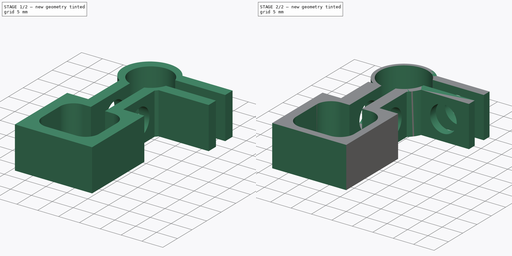
[diagram: build sequence overview — one tinted view per stage of 2, left to right]
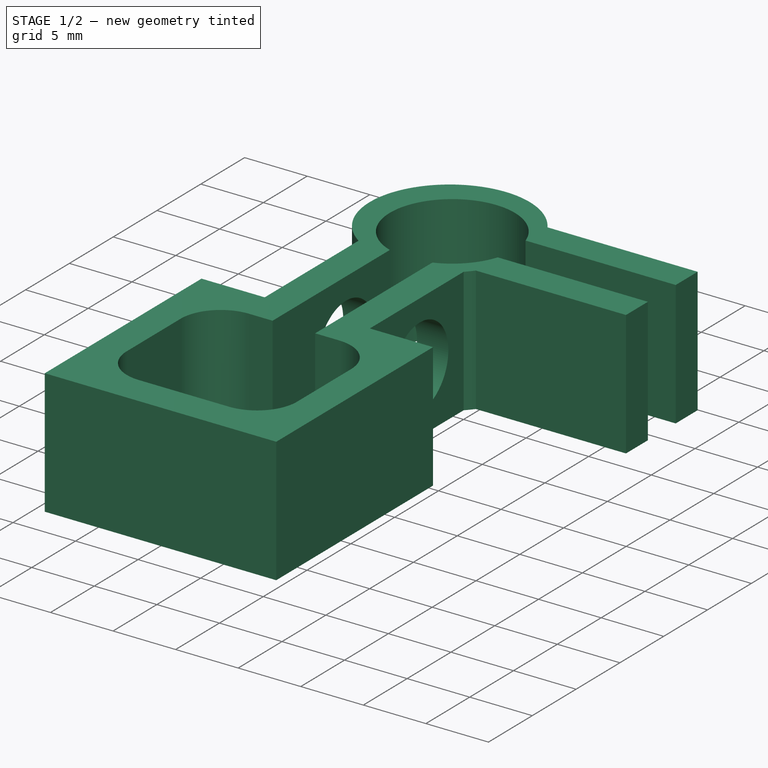
[diagram: stage 1 of 2 — iso view after this stage's code; geometry added in this stage tinted green]
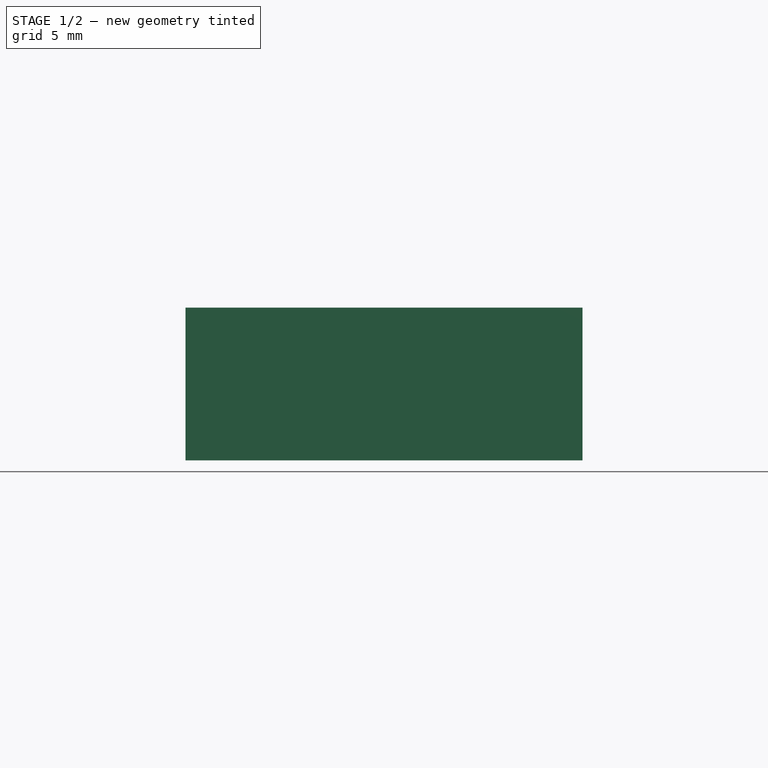
[diagram: stage 1 of 2 — front view after this stage's code; geometry added in this stage tinted green]
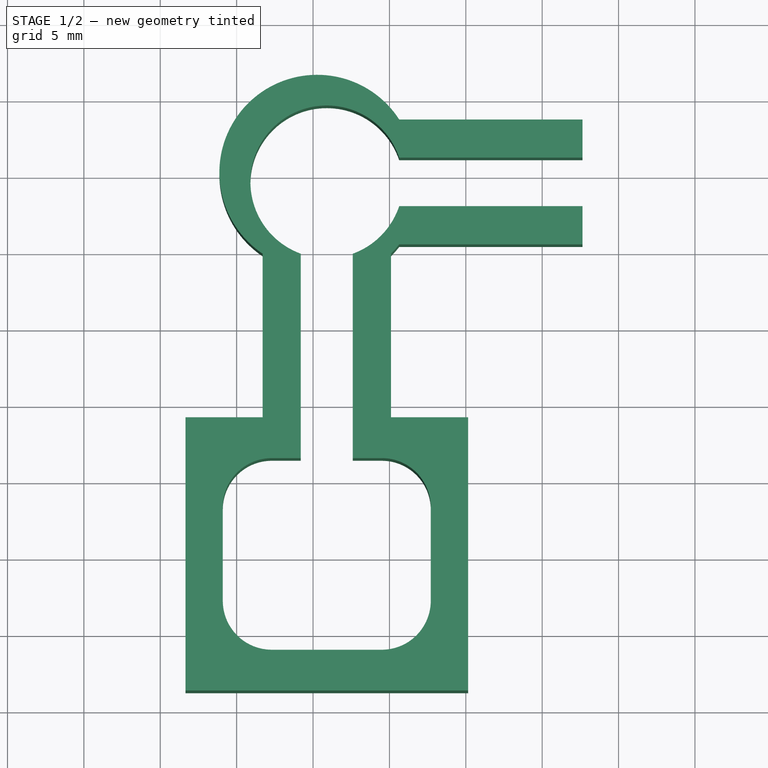
[diagram: stage 1 of 2 — top view after this stage's code; geometry added in this stage tinted green]
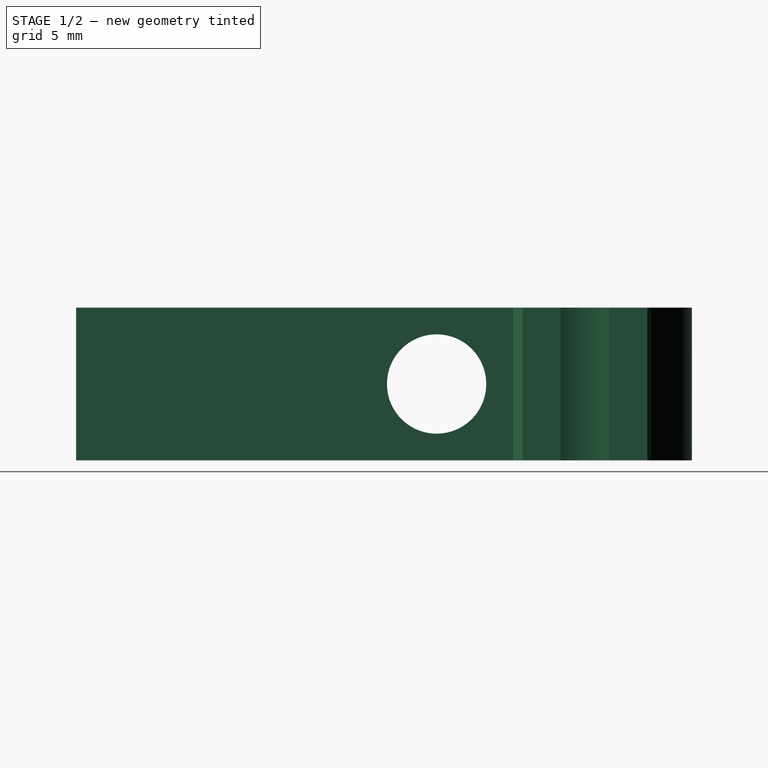
[diagram: stage 1 of 2 — right view after this stage's code; geometry added in this stage tinted green]
FCSTD DOCUMENT  (FreeCAD 0.21R33771 (Git))
Label: sryinge back holder
License: All rights reserved
LicenseURL: https://en.wikipedia.org/wiki/All_rights_reserved
objects: Sketcher::SketchObject×3, PartDesign::Pocket×2, PartDesign::Pad×1, PartDesign::Body×1
note: 10 computed .brp shape members not serialized (recipe doc carries the construction recipe); baked Part::Feature solids carry a one-line shape summary decoded from their .brp

FEATURE [Sketcher::SketchObject] Sketch
  FullyConstrained = false
  MapMode = 5
  Support = -> [XY_Plane]
  sketch-geometry (51):
    g0: LineSegment StartX=2.29927 StartY=-1.0515 StartZ=0 EndX=9.49927 EndY=-1.0515 EndZ=0
    g1: LineSegment StartX=12.7066 StartY=2.15582 StartZ=0 EndX=12.7066 EndY=8.28582 EndZ=0
    g2: LineSegment StartX=-0.90805 StartY=8.28582 StartZ=0 EndX=-0.90805 EndY=2.15582 EndZ=0
    g3: LineSegment StartX=0.14927 StartY=-0.224176 StartZ=0 EndX=-3.35073 EndY=-0.224176 EndZ=0
    g4: LineSegment StartX=0.14927 StartY=-3.72418 StartZ=0 EndX=0.14927 EndY=-0.224176 EndZ=0
    g5: LineSegment StartX=-3.35073 StartY=-3.72418 StartZ=0 EndX=15.1493 EndY=-3.72418 EndZ=0
    g6: LineSegment StartX=15.1493 StartY=-3.72418 StartZ=0 EndX=15.1493 EndY=14.1658 EndZ=0
    g7: LineSegment StartX=15.1493 StartY=14.1658 StartZ=0 EndX=10.0993 EndY=14.1658 EndZ=0
    g8: LineSegment StartX=-3.35073 StartY=14.1658 StartZ=0 EndX=-3.35073 EndY=-3.72418 EndZ=0
    g9: LineSegment StartX=11.6493 StartY=10.6658 StartZ=0 EndX=15.1493 EndY=10.6658 EndZ=0
    g10: LineSegment StartX=11.6493 StartY=14.1658 StartZ=0 EndX=11.6493 EndY=10.6658 EndZ=0
    g11: ArcOfCircle CenterX=2.29927 CenterY=8.28582 CenterZ=0 NormalX=0 NormalY=0 NormalZ=1 AngleXU=0 Radius=3.20732 StartAngle=1.5708 EndAngle=3.14159
    g12: ArcOfCircle CenterX=9.49927 CenterY=8.28582 CenterZ=0 NormalX=0 NormalY=0 NormalZ=1 AngleXU=0 Radius=3.20732 StartAngle=0 EndAngle=1.5708
    g13: ArcOfCircle CenterX=2.29927 CenterY=2.15582 CenterZ=0 NormalX=0 NormalY=0 NormalZ=1 AngleXU=0 Radius=3.20732 StartAngle=3.14159 EndAngle=4.71239
    g14: ArcOfCircle CenterX=9.49927 CenterY=2.15582 CenterZ=0 NormalX=0 NormalY=0 NormalZ=1 AngleXU=0 Radius=3.20732 StartAngle=4.71239 EndAngle=6.28319
    g15: LineSegment StartX=0.14927 StartY=14.1658 StartZ=0 EndX=0.14927 EndY=10.6658 EndZ=0
    g16: LineSegment StartX=0.14927 StartY=10.6658 StartZ=0 EndX=-3.35073 EndY=10.6658 EndZ=0
    g17: LineSegment StartX=11.6493 StartY=-3.72418 StartZ=0 EndX=11.6493 EndY=-0.224176 EndZ=0
    g18: LineSegment StartX=11.6493 StartY=-0.224176 StartZ=0 EndX=15.1493 EndY=-0.224176 EndZ=0
    g19: LineSegment StartX=1.69927 StartY=14.1658 StartZ=0 EndX=1.69927 EndY=24.8758 EndZ=0
    g20: LineSegment StartX=4.19927 StartY=24.8758 StartZ=0 EndX=4.19927 EndY=14.1658 EndZ=0
    g21: LineSegment StartX=10.0993 StartY=14.1658 StartZ=0 EndX=10.0993 EndY=24.8758 EndZ=0
    g22: LineSegment StartX=7.59927 StartY=24.8758 StartZ=0 EndX=7.59927 EndY=14.1658 EndZ=0
    g23: LineSegment StartX=1.69927 StartY=14.1658 StartZ=0 EndX=-3.35073 EndY=14.1658 EndZ=0
    g24: LineSegment StartX=4.19927 StartY=14.1658 StartZ=0 EndX=4.19927 EndY=11.4931 EndZ=0
    g25: LineSegment StartX=7.59927 StartY=14.1658 StartZ=0 EndX=7.59927 EndY=11.4931 EndZ=0
    g26: LineSegment StartX=4.19927 StartY=11.4931 StartZ=0 EndX=2.29927 EndY=11.4931 EndZ=0
    g27: LineSegment StartX=9.49927 StartY=11.4931 StartZ=0 EndX=7.59927 EndY=11.4931 EndZ=0
    g28: ArcOfCircle CenterX=5.8231 CenterY=29.1874 CenterZ=0 NormalX=0 NormalY=0 NormalZ=1 AngleXU=0 Radius=6.07253 StartAngle=5.49366 EndAngle=5.62863
    g29: ArcOfCircle CenterX=5.89927 CenterY=29.578 CenterZ=0 NormalX=0 NormalY=0 NormalZ=1 AngleXU=0 Radius=5 StartAngle=5.05931 EndAngle=5.96009
    g30: LineSegment StartX=7.59927 StartY=24.8758 StartZ=0 EndX=11.8317 EndY=24.8758 EndZ=0
    g31: LineSegment StartX=11.8317 StartY=24.8758 StartZ=0 EndX=11.8317 EndY=27.9905 EndZ=0
    g32: LineSegment StartX=11.8317 StartY=29.578 StartZ=0 EndX=7.59927 EndY=29.578 EndZ=0
    g33: LineSegment StartX=7.59927 StartY=29.578 StartZ=0 EndX=7.59927 EndY=24.8758 EndZ=0
    g34: LineSegment StartX=11.8317 StartY=29.578 StartZ=0 EndX=13.8605 EndY=29.578 EndZ=0
    g35: LineSegment StartX=13.8605 StartY=29.578 StartZ=0 EndX=13.8605 EndY=31.1655 EndZ=0
    g36: LineSegment StartX=13.8605 StartY=31.1655 StartZ=0 EndX=10.6406 EndY=31.1655 EndZ=0
    g37: LineSegment StartX=13.8605 StartY=27.9905 StartZ=0 EndX=11.8317 EndY=27.9905 EndZ=0
    g38: LineSegment StartX=13.8605 StartY=29.578 StartZ=0 EndX=13.8605 EndY=27.9905 EndZ=0
    g39: LineSegment StartX=11.8317 StartY=31.1655 StartZ=0 EndX=8.94186 EndY=31.1655 EndZ=0
    g40: LineSegment StartX=8.94186 StartY=31.1655 StartZ=0 EndX=8.94186 EndY=27.9905 EndZ=0
    g41: LineSegment StartX=8.94186 StartY=27.9905 StartZ=0 EndX=11.5819 EndY=27.9905 EndZ=0
    g42: LineSegment StartX=11.8317 StartY=27.9905 StartZ=0 EndX=11.8317 EndY=31.1655 EndZ=0
    g43: ArcOfCircle CenterX=5.26699 CenterY=30.1891 CenterZ=0 NormalX=0 NormalY=0 NormalZ=1 AngleXU=0 Radius=6.4 StartAngle=0.574211 EndAngle=4.12107
    g44: ArcOfCircle CenterX=5.89927 CenterY=29.578 CenterZ=0 NormalX=0 NormalY=0 NormalZ=1 AngleXU=0 Radius=5 StartAngle=0.323092 EndAngle=4.36547
    g45: LineSegment StartX=10.6406 StartY=31.1655 StartZ=0 EndX=22.6406 EndY=31.1655 EndZ=0
    g46: LineSegment StartX=22.6406 StartY=31.1655 StartZ=0 EndX=22.6406 EndY=33.6655 EndZ=0
    g47: LineSegment StartX=22.6406 StartY=33.6655 StartZ=0 EndX=10.6406 EndY=33.6655 EndZ=0
    g48: LineSegment StartX=10.6406 StartY=27.9905 StartZ=0 EndX=22.6406 EndY=27.9905 EndZ=0
    g49: LineSegment StartX=22.6406 StartY=27.9905 StartZ=0 EndX=22.6406 EndY=25.4905 EndZ=0
    g50: LineSegment StartX=22.6406 StartY=25.4905 StartZ=0 EndX=10.6406 EndY=25.4905 EndZ=0
  constraints (159):
    c: Equal(g8,g6)
    c: Coincident(g8,g5)
    c: Coincident(g6,g5)
    c: Distance(g8) = 17.89
    c: PointOnObject(g17,g5)
    c: PointOnObject(g4,g5)
    c: PointOnObject(g18,g6)
    c: PointOnObject(g17,g14)
    c: Coincident(g18,g17)
    c: Perpendicular(g5,g17)
    c: Perpendicular(g6,g-1)
    c: Perpendicular(g5,g6)
    c: Distance(g18) = 3.5
    c: Distance(g17) = 3.5
    c: Perpendicular(g18,g6)
    c: Coincident(g0,g14)
    c: Horizontal(g0)
    c: Coincident(g0,g13)
    c: PointOnObject(g3,g13)
    c: Distance(g4) = 3.5
    c: Distance(g3) = 3.5
    c: Coincident(g4,g3)
    c: PointOnObject(g3,g8)
    c: Perpendicular(g8,g3)
    c: Perpendicular(g5,g4)
    c: Distance(g0) = 7.2
    c: Distance(g5) = 18.5
    c: Coincident(g14,g1)
    c: Vertical(g1)
    c: Coincident(g13,g2)
    c: Vertical(g2)
    c: Coincident(g2,g11)
    c: Coincident(g1,g12)
    c: PointOnObject(g15,g11)
    c: Perpendicular(g8,g16)
    c: Perpendicular(g23,g15)
    c: PointOnObject(g9,g6)
    c: Vertical(g12,g14)
    c: Vertical(g11,g13)
    c: Coincident(g7,g6)
    c: Horizontal(g7)
    c: PointOnObject(g9,g12)
    c: Coincident(g10,g9)
    c: PointOnObject(g10,g7)
    c: Perpendicular(g6,g9)
    c: Perpendicular(g7,g10)
    c: Distance(g9) = 3.5
    c: Distance(g10) = 3.5
    c: Horizontal(g14,g13)
    c: Horizontal(g11,g12)
    c: Coincident(g26,g11)
    c: Coincident(g27,g12)
    c: Horizontal(g26)
    c: Horizontal(g27)
    c: Distance(g16) = 3.5
    c: Distance(g15) = 3.5
    c: Coincident(g16,g15)
    c: Vertical(g3,g15)
    c: Vertical(g0,g14)
    c: Horizontal(g1,g14)
    c: Vertical(g0,g13)
    c: Horizontal(g13,g2)
    c: Horizontal(g1,g12)
    c: Vertical(g12,g12)
    c: Horizontal(g11,g2)
    c: Vertical(g11,g11)
    c: Coincident(g23,g8)
    c: PointOnObject(g15,g23)
    c: Perpendicular(g23,g8)
    c: Coincident(g25,g27)
    c: Coincident(g24,g26)
    c: Equal(g7,g23)
    c: Coincident(g19,g23)
    c: Coincident(g21,g7)
    c: Vertical(g19)
    c: Vertical(g21)
    c: Equal(g26,g27)
    c: Coincident(g19,g43)
    c: Coincident(g28,g21)
    c: Radius(g43) = 6.4
    c: Radius(g44) = 5
    c: Radius(g29) = 5
    c: Coincident(g22,g29)
    c: Horizontal(g44,g22)
    c: Coincident(g20,g44)
    c: Coincident(g20,g24)
    c: Coincident(g22,g25)
    c: Vertical(g24)
    c: Vertical(g25)
    c: Vertical(g22)
    c: Vertical(g20)
    c: Distance(g2) = 6.13
    c: Coincident(g30,g22)
    c: Coincident(g33,g22)
    c: Horizontal(g30)
    c: Vertical(g33)
    c: PointOnObject(g37,g48)
    c: PointOnObject(g35,g45)
    c: PointOnObject(g21,g30)
    c: Horizontal(g20,g19)
    c: Coincident(g31,g30)
    c: Coincident(g28,g50)
    c: Coincident(g50,g49)
    c: Coincident(g29,g48)
    c: Perpendicular(g50,g21)
    c: Vertical(g49)
    c: Equal(g47,g50)
    c: Coincident(g43,g47)
    c: Vertical(g43,g36)
    c: Coincident(g44,g45)
    c: Coincident(g31,g37)
    c: Vertical(g31)
    c: Vertical(g42)
    c: Horizontal(g48)
    c: Horizontal(g41)
    c: PointOnObject(g41,g48)
    c: PointOnObject(g39,g45)
    c: Horizontal(g36)
    c: Coincident(g36,g35)
    c: PointOnObject(g39,g36)
    c: Horizontal(g39)
    c: Coincident(g39,g40)
    c: Coincident(g42,g39)
    c: Coincident(g31,g42)
    c: Horizontal(g37)
    c: Parallel(g50,g47)
    c: Equal(g49,g46)
    c: Coincident(g46,g45)
    c: Coincident(g47,g46)
    c: Coincident(g49,g48)
    c: Distance(g7) = 5.05
    c: Distance(g19) = 10.71
    c: Coincident(g38,g37)
    c: Coincident(g40,g41)
    c: Distance(g35) = 1.5875
    c: Distance(g38) = 1.5875
    c: Coincident(g34,g38)
    c: Coincident(g35,g34)
    c: Coincident(g34,g32)
    c: Horizontal(g32)
    c: Horizontal(g34,g33)
    c: Coincident(g32,g33)
    c: PointOnObject(g32,g42)
    c: Distance(g50) = 12
    c: Distance(g45) = 12
    c: Vertical(g29,g44)
    c: Parallel(g46,g49)
    c: Vertical(g48,g45)
    c: Distance(g49) = 2.5
    c: DistanceX(g22,g21) = 2.5
    c: DistanceX(g-1) = 0
    c: DistanceY(g-1) = 0
    c: Coincident(g29,g44)
    c: Perpendicular(g35,g34)
    c: Perpendicular(g38,g34)
    c: DistanceX(g5) = -3.35073
    c: DistanceY(g5) = -3.72418
    c: Horizontal(g20,g22)
    c: Horizontal(g10,g22)
FEATURE [PartDesign::Pad] Pad
  Direction = (0,0,1)
  Length = 10
  Length2 = 10
  Profile = -> Sketch
  ReferenceAxis = -> Sketch [N_Axis]
  Type = 0
FEATURE [Sketcher::SketchObject] Sketch001
  ExternalGeometry = -> [Pad]
  FullyConstrained = true
  MapMode = 5
  Placement = pos=(10.357,0,0) rot=(0.57735,0.57735,0.57735;2.0944rad)
  Support = -> [Pad]
  sketch-geometry (5):
    g0: LineSegment StartX=24.7725 StartY=10 StartZ=0 EndX=19.7725 EndY=10 EndZ=0
    g1: LineSegment StartX=19.7725 StartY=10 StartZ=0 EndX=19.7725 EndY=5 EndZ=0
    g2: LineSegment StartX=19.7725 StartY=5 StartZ=0 EndX=24.7725 EndY=5 EndZ=0
    g3: LineSegment StartX=24.7725 StartY=5 StartZ=0 EndX=24.7725 EndY=10 EndZ=0
    g4: Circle CenterX=19.7725 CenterY=5 CenterZ=0 NormalX=0 NormalY=0 NormalZ=1 AngleXU=0 Radius=3.25
  constraints (15):
    c: Distance(g-4) = 10.71
    c: Distance(g-3) = 10
    c: Coincident(g0,g1)
    c: Coincident(g1,g2)
    c: Coincident(g2,g3)
    c: Coincident(g3,g0)
    c: Horizontal(g0)
    c: Horizontal(g2)
    c: Vertical(g1)
    c: Vertical(g3)
    c: Coincident(g0,g-4)
    c: Distance(g2) = 5
    c: Distance(g1) = 5
    c: Coincident(g4,g1)
    c: Diameter(g4) = 6.5
FEATURE [PartDesign::Pocket] Pocket
  BaseFeature = -> Pad
  Direction = (-1,0,0)
  Length = 15
  Length2 = 5
  Profile = -> Sketch001
  ReferenceAxis = -> Sketch001 [N_Axis]
  Type = 0
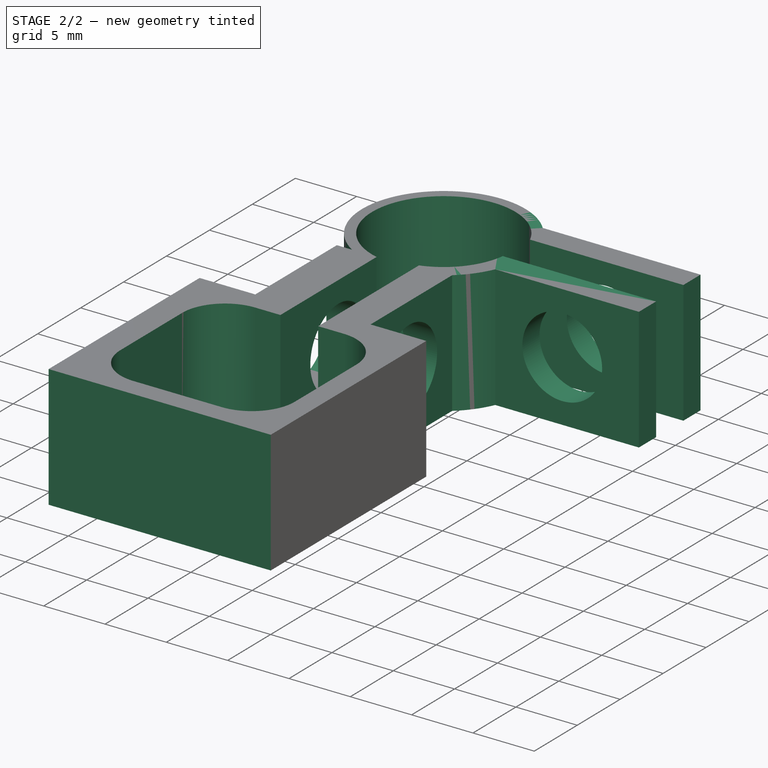
[diagram: stage 2 of 2 — iso view after this stage's code; geometry added in this stage tinted green]
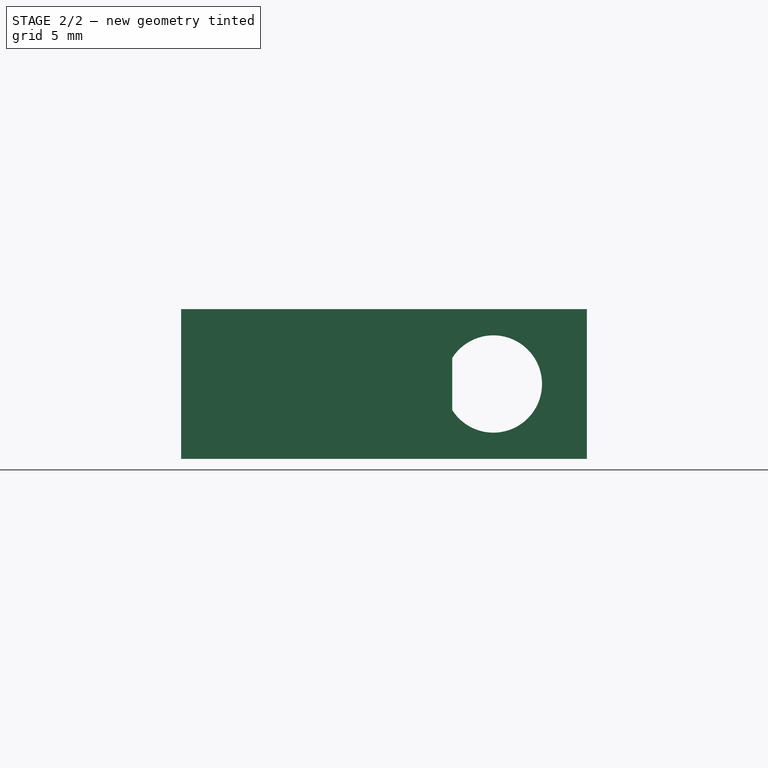
[diagram: stage 2 of 2 — front view after this stage's code; geometry added in this stage tinted green]
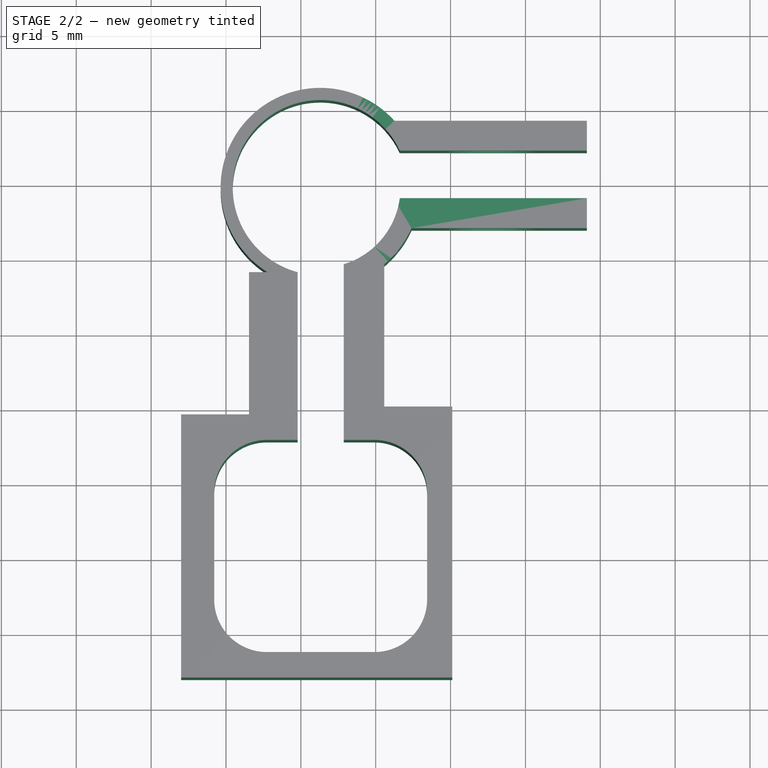
[diagram: stage 2 of 2 — top view after this stage's code; geometry added in this stage tinted green]
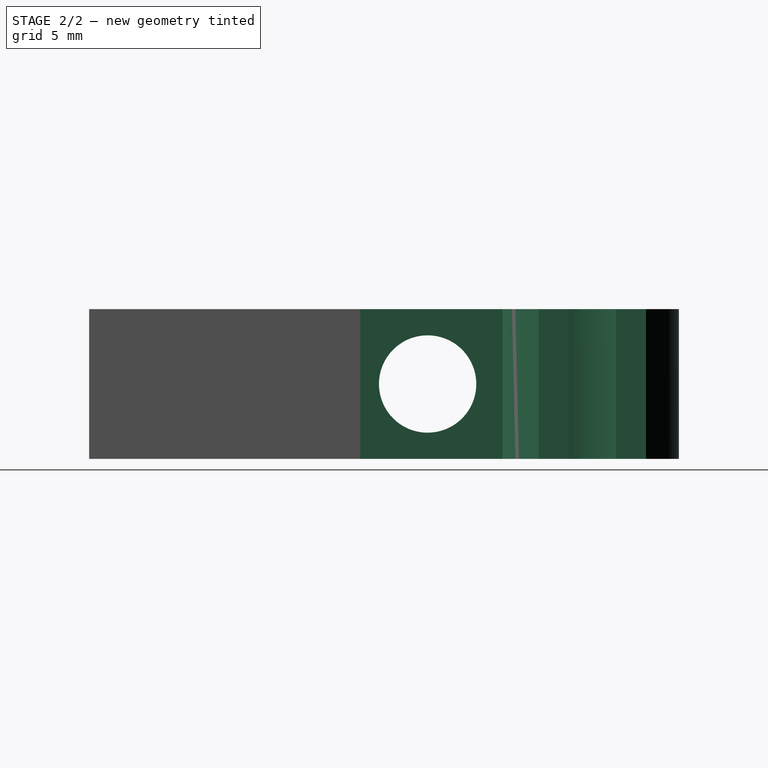
[diagram: stage 2 of 2 — right view after this stage's code; geometry added in this stage tinted green]
FEATURE [Sketcher::SketchObject] Sketch002
  ExternalGeometry = -> [Pocket]
  FullyConstrained = true
  MapMode = 5
  Placement = pos=(0,34.1975,0) rot=(0,0.707107,0.707107;3.14159rad)
  Support = -> [Pocket]
  sketch-geometry (5):
    g0: LineSegment StartX=-24.1079 StartY=10 StartZ=0 EndX=-17.8579 EndY=10 EndZ=0
    g1: LineSegment StartX=-17.8579 StartY=10 StartZ=0 EndX=-17.8579 EndY=5 EndZ=0
    g2: LineSegment StartX=-17.8579 StartY=5 StartZ=0 EndX=-24.1079 EndY=5 EndZ=0
    g3: LineSegment StartX=-24.1079 StartY=5 StartZ=0 EndX=-24.1079 EndY=10 EndZ=0
    g4: Circle CenterX=-17.8579 CenterY=5 CenterZ=0 NormalX=0 NormalY=0 NormalZ=1 AngleXU=0 Radius=3.25
  constraints (15):
    c: Distance(g-3) = 12.8602
    c: Distance(g-4) = 10
    c: Coincident(g0,g1)
    c: Coincident(g1,g2)
    c: Coincident(g2,g3)
    c: Coincident(g3,g0)
    c: Horizontal(g0)
    c: Horizontal(g2)
    c: Vertical(g1)
    c: Vertical(g3)
    c: Coincident(g0,g-4)
    c: Distance(g1) = 5
    c: Distance(g2) = 6.25
    c: Coincident(g4,g1)
    c: Diameter(g4) = 6.5
FEATURE [PartDesign::Pocket] Pocket001
  BaseFeature = -> Pocket
  Direction = (0,-1,2e-16)
  Length = 15
  Length2 = 5
  Profile = -> Sketch002
  ReferenceAxis = -> Sketch002 [N_Axis]
  Type = 0
FEATURE [PartDesign::Body] Body
  Group = -> [Sketch,Pad,Sketch001,Pocket,Sketch002,Pocket001]
  Origin = -> Origin
  Tip = -> Pocket001
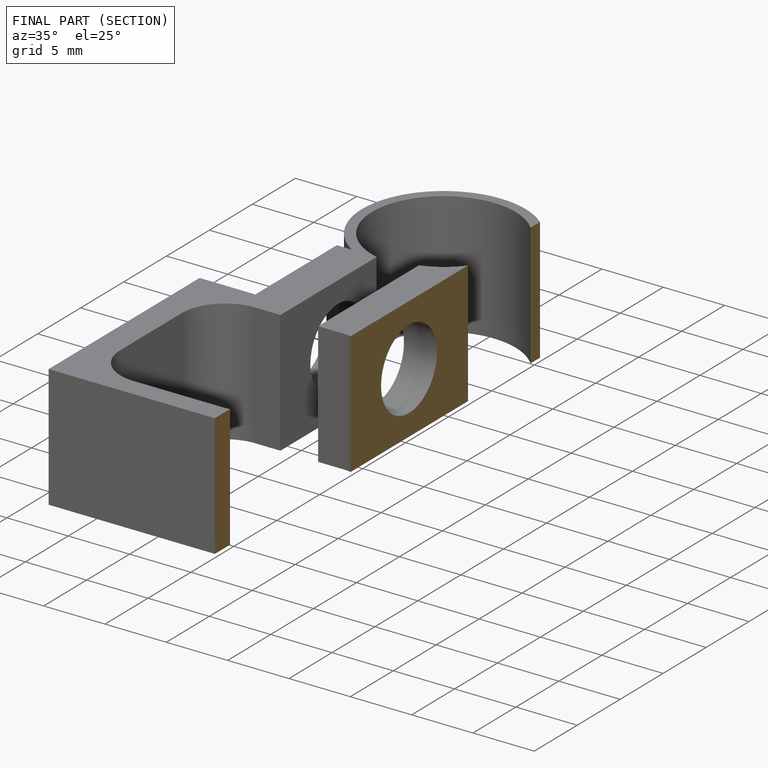
[diagram: finished part — half-section view (interior)]
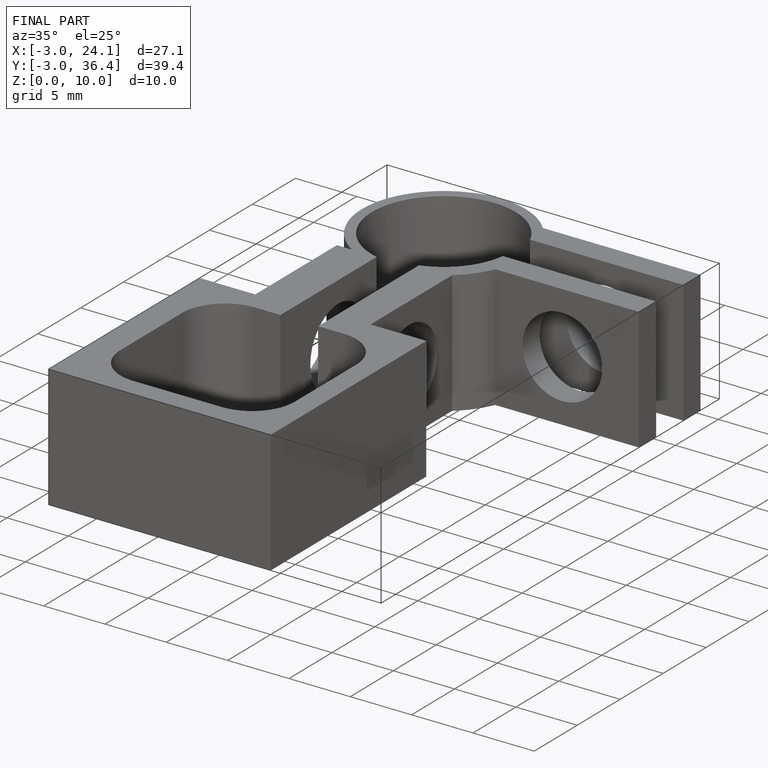
[diagram: finished part — iso view with bounding-box wireframe]
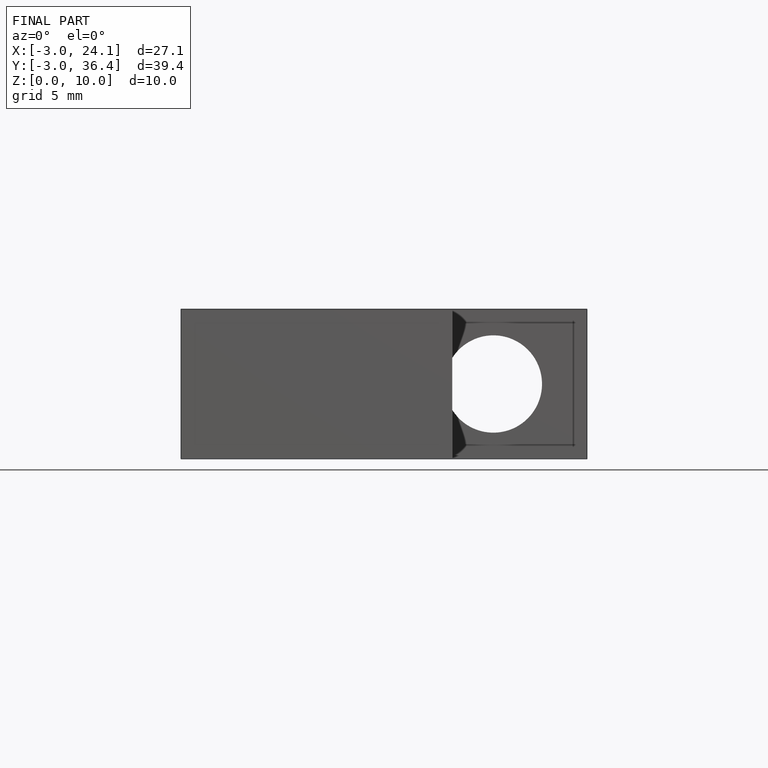
[diagram: finished part — front view with bounding-box wireframe]
